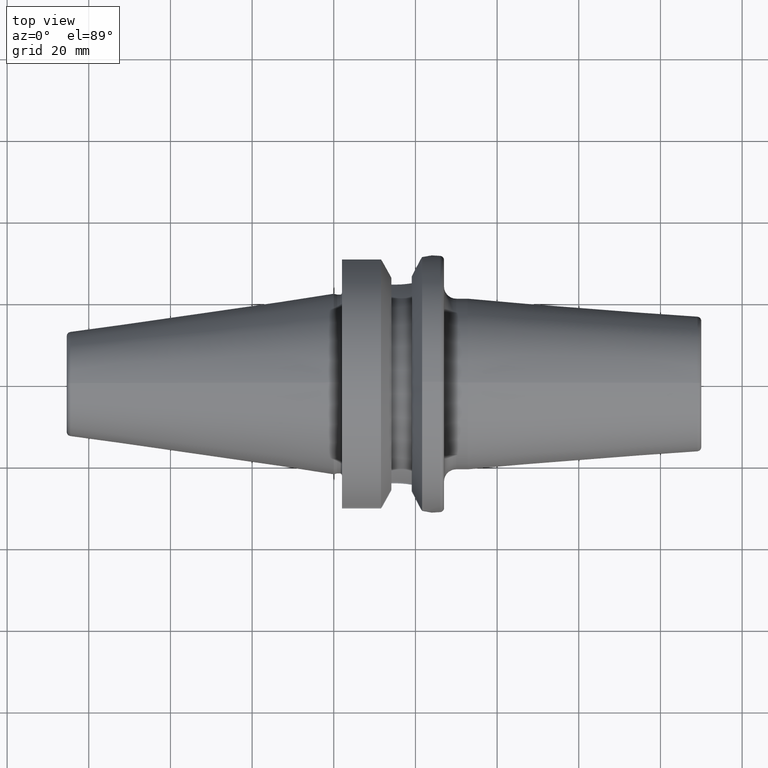
[diagram: clean part render]
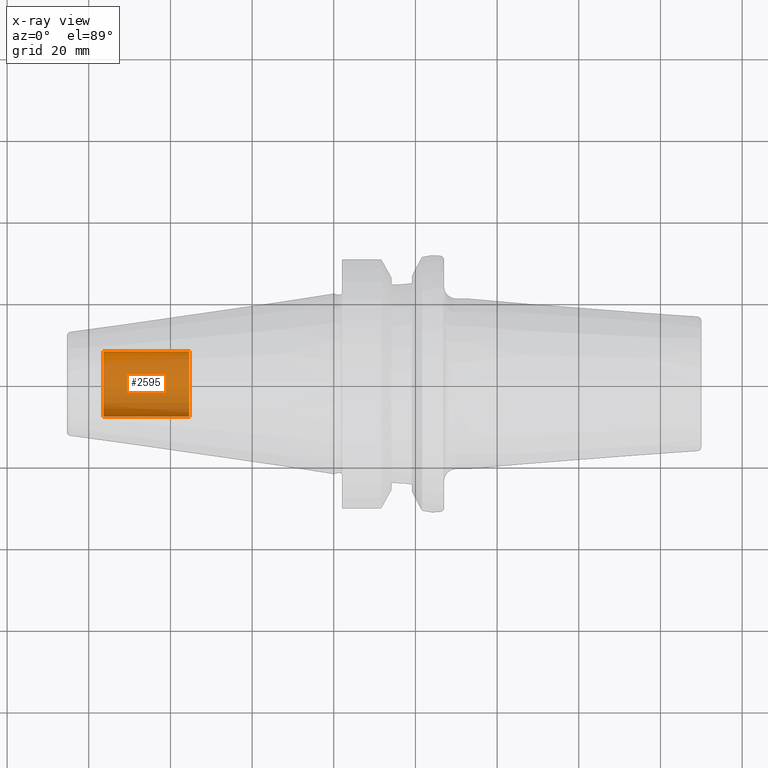
[diagram: x-ray — body ghosted, one internal face saturated and labeled with its STEP entity id]
A machine part, top view, then the same camera in x-ray: the body is ghosted and one INTERNAL B-rep face — a face not visible from any outside direction — is saturated and labeled: STEP entity #2595.
In plain terms, the highlighted cylindrical surface (edge-blend (fillet) strip) has radius 8 mm, axis along (-1, 0, 0).
Its self-contained STEP definition (entity closure, byte-faithful):
#2530=CARTESIAN_POINT('',(-5.64E1,0.E0,0.E0));
#2531=DIRECTION('',(1.E0,0.E0,0.E0));
#2532=DIRECTION('',(0.E0,-1.E0,0.E0));
#2533=AXIS2_PLACEMENT_3D('',#2530,#2531,#2532);
#2540=DIRECTION('',(1.E0,0.E0,0.E0));
#2541=VECTOR('',#2540,2.1E1);
#2542=CARTESIAN_POINT('',(-5.64E1,-8.E0,0.E0));
#2543=LINE('',#2542,#2541);
#2544=DIRECTION('',(1.E0,0.E0,0.E0));
#2545=VECTOR('',#2544,2.1E1);
#2546=CARTESIAN_POINT('',(-5.64E1,8.E0,0.E0));
#2547=LINE('',#2546,#2545);
#2553=CARTESIAN_POINT('',(-3.54E1,0.E0,0.E0));
#2554=DIRECTION('',(-1.E0,0.E0,0.E0));
#2555=DIRECTION('',(0.E0,1.E0,0.E0));
#2556=AXIS2_PLACEMENT_3D('',#2553,#2554,#2555);
#2568=CARTESIAN_POINT('',(-3.54E1,8.E0,0.E0));
#2569=CARTESIAN_POINT('',(-3.54E1,-8.E0,0.E0));
#2570=VERTEX_POINT('',#2568);
#2571=VERTEX_POINT('',#2569);
#2572=CARTESIAN_POINT('',(-5.64E1,8.E0,0.E0));
#2573=CARTESIAN_POINT('',(-5.64E1,-8.E0,0.E0));
#2574=VERTEX_POINT('',#2572);
#2575=VERTEX_POINT('',#2573);
#2580=CARTESIAN_POINT('',(-1.373367445015E1,0.E0,0.E0));
#2581=DIRECTION('',(-1.E0,0.E0,0.E0));
#2582=DIRECTION('',(0.E0,1.E0,0.E0));
#2583=AXIS2_PLACEMENT_3D('',#2580,#2581,#2582);
#2584=CYLINDRICAL_SURFACE('',#2583,8.E0);
#2586=ORIENTED_EDGE('',*,*,#2585,.T.);
#2588=ORIENTED_EDGE('',*,*,#2587,.T.);
#2590=ORIENTED_EDGE('',*,*,#2589,.T.);
#2592=ORIENTED_EDGE('',*,*,#2591,.F.);
#2593=EDGE_LOOP('',(#2586,#2588,#2590,#2592));
#2594=FACE_OUTER_BOUND('',#2593,.F.);
#2595=ADVANCED_FACE('',(#2594),#2584,.F.);
#2534=CIRCLE('',#2533,8.E0);
#2557=CIRCLE('',#2556,8.E0);
#2585=EDGE_CURVE('',#2575,#2574,#2534,.T.);
#2587=EDGE_CURVE('',#2574,#2570,#2547,.T.);
#2589=EDGE_CURVE('',#2570,#2571,#2557,.T.);
#2591=EDGE_CURVE('',#2575,#2571,#2543,.T.);